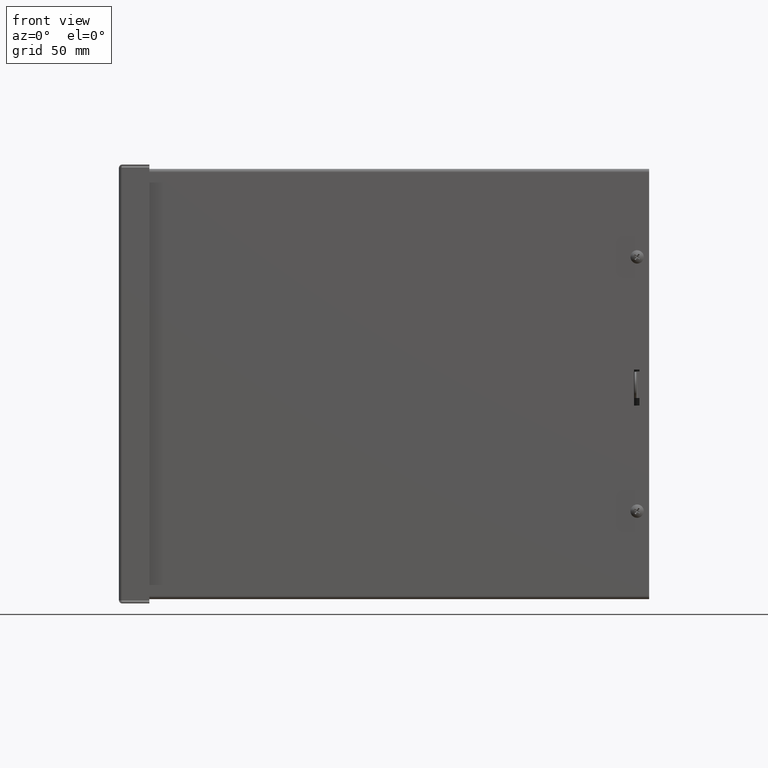
[diagram: clean part render]
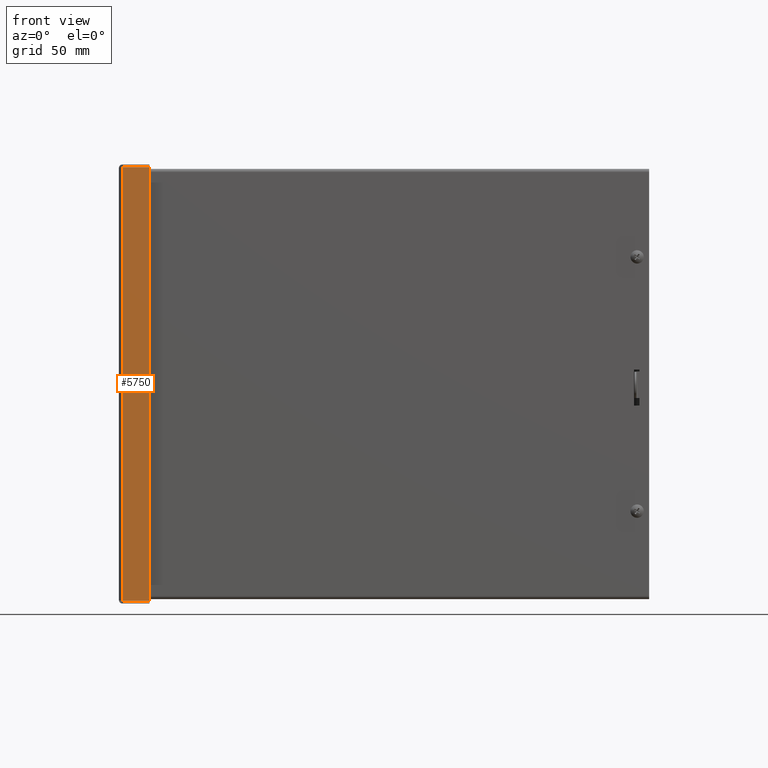
[diagram: same view with one face highlighted and labeled with its STEP entity id]
A machine part, front view. The second image highlights one B-rep face of the part: STEP entity #5750.
In plain terms, the highlighted planar face has unit normal (0, 1, -0).
Its self-contained STEP definition (entity closure, byte-faithful):
#375=PLANE($,#6104);
#857=FACE_OUTER_BOUND($,#1216,.T.);
#1216=EDGE_LOOP($,(#4761,#4762,#4763,#4764));
#1930=LINE($,#10375,#2387);
#1936=LINE($,#10402,#2393);
#1940=LINE($,#10462,#2397);
#1942=LINE($,#10465,#2399);
#2387=VECTOR($,#7154,12.4789029130879);
#2393=VECTOR($,#7164,0.78175);
#2397=VECTOR($,#7170,0.78175);
#2399=VECTOR($,#7174,12.4789029130879);
#2784=VERTEX_POINT($,#10373);
#2785=VERTEX_POINT($,#10374);
#2790=VERTEX_POINT($,#10401);
#2791=VERTEX_POINT($,#10461);
#3470=EDGE_CURVE($,#2784,#2785,#1930,.T.);
#3478=EDGE_CURVE($,#2790,#2785,#1936,.T.);
#3484=EDGE_CURVE($,#2784,#2791,#1940,.T.);
#3486=EDGE_CURVE($,#2791,#2790,#1942,.T.);
#4761=ORIENTED_EDGE($,*,*,#3470,.T.);
#4762=ORIENTED_EDGE($,*,*,#3478,.F.);
#4763=ORIENTED_EDGE($,*,*,#3486,.F.);
#4764=ORIENTED_EDGE($,*,*,#3484,.F.);
#5750=ADVANCED_FACE($,(#857),#375,.F.);
#6104=AXIS2_PLACEMENT_3D($,#10466,#7175,#7176);
#7154=DIRECTION($,(-1.,-2.20752979803305E-016,-4.44287995684626E-033));
#7164=DIRECTION($,(1.18329135783152E-030,-5.39030285815812E-015,-1.));
#7170=DIRECTION($,(-1.18329135783152E-030,5.39030285815812E-015,1.));
#7174=DIRECTION($,(-1.,-2.21577215486115E-016,-2.59412112860176E-018));
#7175=DIRECTION('center_axis',(2.20752979803305E-016,-1.,5.27441916118586E-015));
#7176=DIRECTION('ref_axis',(1.,0.,-2.8199664825479E-016));
#10373=CARTESIAN_POINT('',(6.55195145654396,3.,0.0932499999999998));
#10374=CARTESIAN_POINT('',(-5.92695145654396,3.,0.0932499999999998));
#10375=CARTESIAN_POINT($,(0.3125,3.,0.0932499999999998));
#10401=CARTESIAN_POINT('',(-5.92695145654396,3.,0.875));
#10402=CARTESIAN_POINT($,(-5.92695145654396,3.,0.0932499999999998));
#10461=CARTESIAN_POINT('',(6.55195145654396,3.00000000000001,0.875));
#10462=CARTESIAN_POINT($,(6.55195145654396,3.,0.0932499999999998));
#10465=CARTESIAN_POINT($,(6.55195145654396,3.00000000000001,0.875));
#10466=CARTESIAN_POINT('Origin',(0.3125,3.,0.450256475317996));